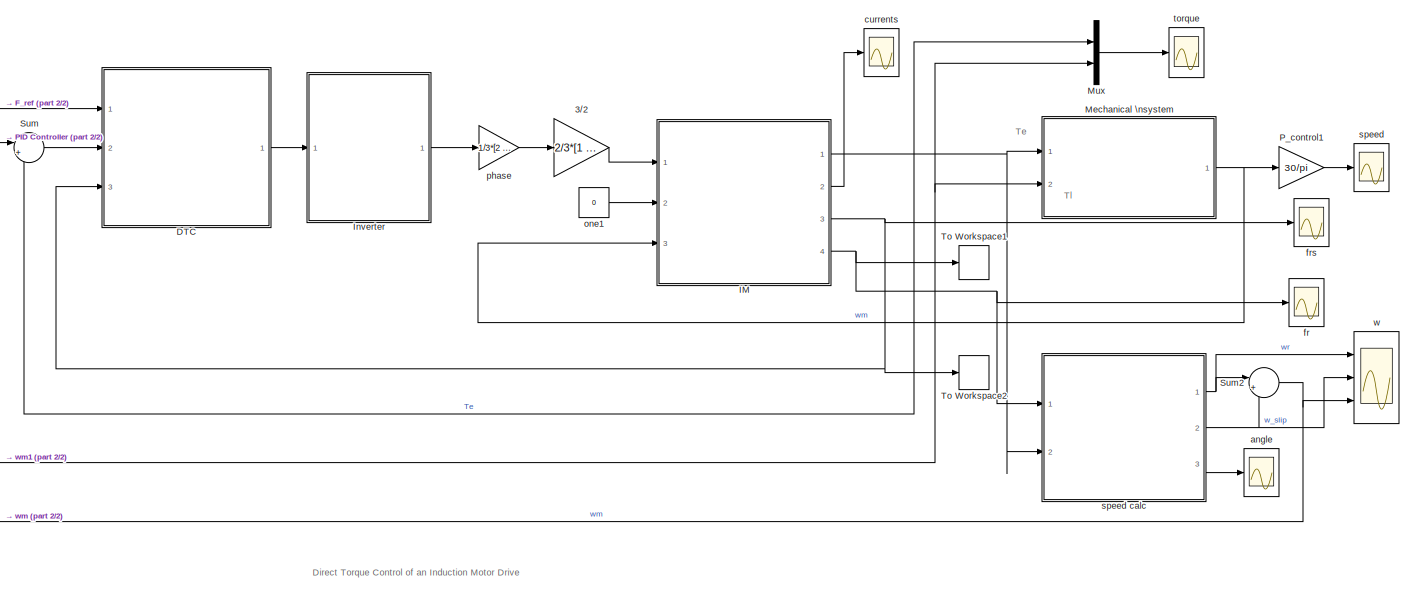
[diagram: root canvas - part 1/2, most of the canvas]
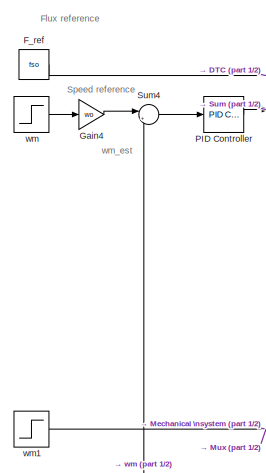
[diagram: root canvas - part 2/2, left side, full height]
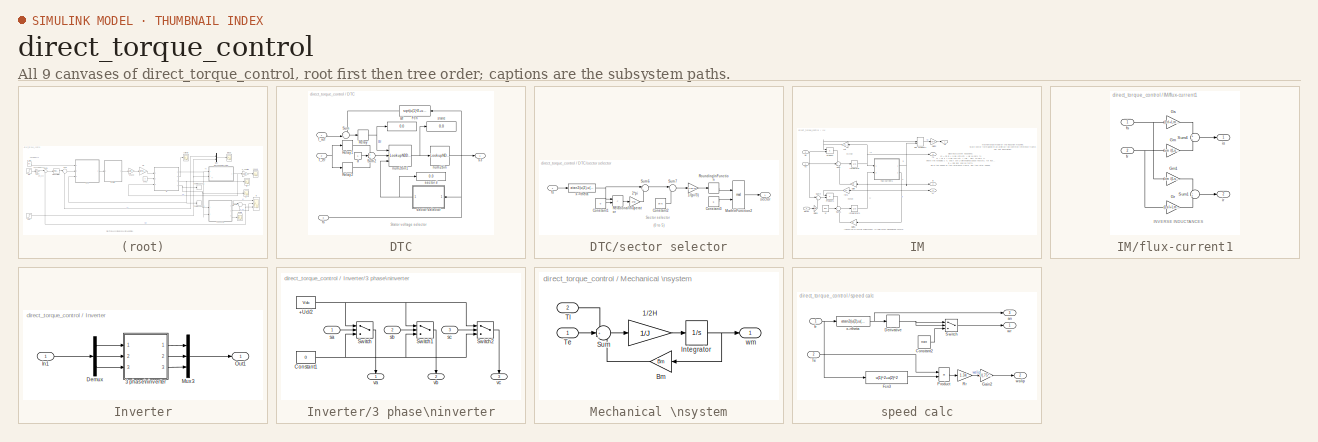
[diagram: thumbnail index - all 9 canvases of the model, root first then tree order]
MODEL direct_torque_control
KIND model
CONFIG InitFcn = clear;\nwarning off;\nwmo=0.0;       %initial speed\nfso=.996;        %initial stator flux\nVdc=700;\nwo=2*pi*50;\n\n%switching table for DTC\na(:,:,1) =[4 0 2;5 7 3];\na(:,:,2) =[5 7 6;1 0 2];\na(:,:,3) =[1 0 4;3 7 6];\na(:,:,4) =[3 7 5;2 0 4];\na(:,:,5) =[2 0 1;6 7 5];\na(:,:,6) =[6 7 3;4 0 1];\nclc;\n%
CONFIG StopFcn = close all;\nscrsz = get(0,'ScreenSize');\n\nfigure('Name',' Results','OuterPosition',[1 100 scrsz(3)*0.75 scrsz(4)*0.75]);\n\nsubplot(1,2,1);\nplot(fs(:,1),fs(:,2),'-r',fr(:,1),fr(:,2),'-b');\naxis equal;\ngrid on;\ntitle('Flux Spave Vector Trajectory');\ntext(.8,-.85,'rotor flux','color','b');\ntext(-1,-.85,'stator flux','color','r');\n%figure(2);\nsubplot(1,2,2);\nplot(an(:,1),unwrap(an(:,2)),'r...<+266ch>
BLOCK [Gain] 3//2
  Gain = 2/3*[1 -0.5 -0.5;0 sqrt(3)/2 -sqrt(3)/2]
  Multiplication = Matrix(K*u)
  SID = 13
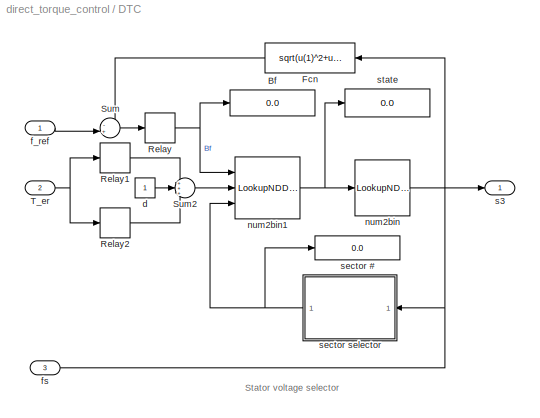
BLOCK [SubSystem] DTC
  FunctionWithSeparateData = off
  MaskHideContents = off
  MinAlgLoopOccurrences = off
  Opaque = off
  Ports = [3, 1]
  PropExecContextOutsideSubsystem = off
  RTWSystemCode = Auto
  RequestExecContextInheritance = off
  SID = 14
BLOCK [Display] DTC/Bf
  Decimation = 1
  Lockdown = off
  Ports = [1]
  SID = 18
BLOCK [Fcn] DTC/Fcn
  Expr = sqrt(u(1)^2+u(2)^2)
  SID = 19
BLOCK [Relay] DTC/Relay
  OffSwitchValue = -.02
  OnSwitchValue = .02
  SID = 20
BLOCK [Relay] DTC/Relay1
  OffSwitchValue = 0
  OnSwitchValue = .2
  SID = 21
  ZeroCross = off
BLOCK [Relay] DTC/Relay2
  OffOutputValue = -1
  OffSwitchValue = -.2
  OnOutputValue = 0
  OnSwitchValue = 0
  SID = 22
  ZeroCross = off
BLOCK [Sum] DTC/Sum
  IconShape = round
  Inputs = -+|
  Ports = [2, 1]
  SID = 23
BLOCK [Sum] DTC/Sum2
  IconShape = round
  Inputs = +++
  Ports = [3, 1]
  SID = 24
BLOCK [Inport] DTC/T_er
  IconDisplay = Port number
  Port = 2
  SID = 16
BLOCK [Constant] DTC/d
  SID = 25
BLOCK [Inport] DTC/f_ref
  IconDisplay = Port number
  SID = 15
BLOCK [Inport] DTC/fs
  IconDisplay = Port number
  Port = 3
  SID = 17
BLOCK [LookupNDDirect] DTC/num2bin
  DiagnosticForOutOfRangeInput = Error
  InputsSelectThisObjectFromTable = Column
  Ports = [1, 1]
  SID = 26
  Table = [0 0 0;1 0 0;0 1 0;1 1 0;0 0 1;1 0 1;0 1 1;1 1 1]'
BLOCK [LookupNDDirect] DTC/num2bin1
  DiagnosticForOutOfRangeInput = Error
  NumberOfTableDimensions = 3
  Ports = [3, 1]
  SID = 27
  Table = a
BLOCK [Outport] DTC/s3
  IconDisplay = Port number
  SID = 44
BLOCK [Display] DTC/sector #
  Decimation = 1
  Lockdown = off
  Ports = [1]
  SID = 28
BLOCK [SubSystem] DTC/sector selector
  FunctionWithSeparateData = off
  MaskHideContents = off
  MinAlgLoopOccurrences = off
  Opaque = off
  Ports = [1, 1]
  PropExecContextOutsideSubsystem = off
  RTWSystemCode = Auto
  RequestExecContextInheritance = off
  SID = 29
BLOCK [Gain] DTC/sector selector/1//(pi//3)
  Gain = 1/(pi/3)
  SID = 31
BLOCK [Gain] DTC/sector selector/2*pi
  Gain = 2*pi
  SID = 32
BLOCK [Constant] DTC/sector selector/Constant1
  SID = 33
  Value = 0
BLOCK [Constant] DTC/sector selector/Constant2
  SID = 34
  Value = pi/6
BLOCK [Constant] DTC/sector selector/Constant3
  SID = 35
  Value = 6
BLOCK [Math] DTC/sector selector/Math\nFunction2
  Operator = mod
  Ports = [2, 1]
  SID = 36
BLOCK [RelationalOperator] DTC/sector selector/Relational\nOperator
  Operator = <
  Ports = [2, 1]
  SID = 37
BLOCK [Rounding] DTC/sector selector/Rounding\nFunction
  SID = 38
BLOCK [Sum] DTC/sector selector/Sum6
  IconShape = round
  Inputs = |++
  Ports = [2, 1]
  SID = 39
BLOCK [Sum] DTC/sector selector/Sum7
  IconShape = round
  Inputs = |++
  Ports = [2, 1]
  SID = 40
BLOCK [Inport] DTC/sector selector/fs
  IconDisplay = Port number
  SID = 30
BLOCK [Outport] DTC/sector selector/sector
  IconDisplay = Port number
  SID = 42
BLOCK [Fcn] DTC/sector selector/x->theta
  Expr = atan2(u(2),u(1))
  SID = 41
BLOCK [Display] DTC/state
  Decimation = 1
  Lockdown = off
  Ports = [1]
  SID = 43
BLOCK [Constant] F_ref
  SID = 46
  Value = fso
BLOCK [Gain] Gain4
  Gain = wo
  SID = 47
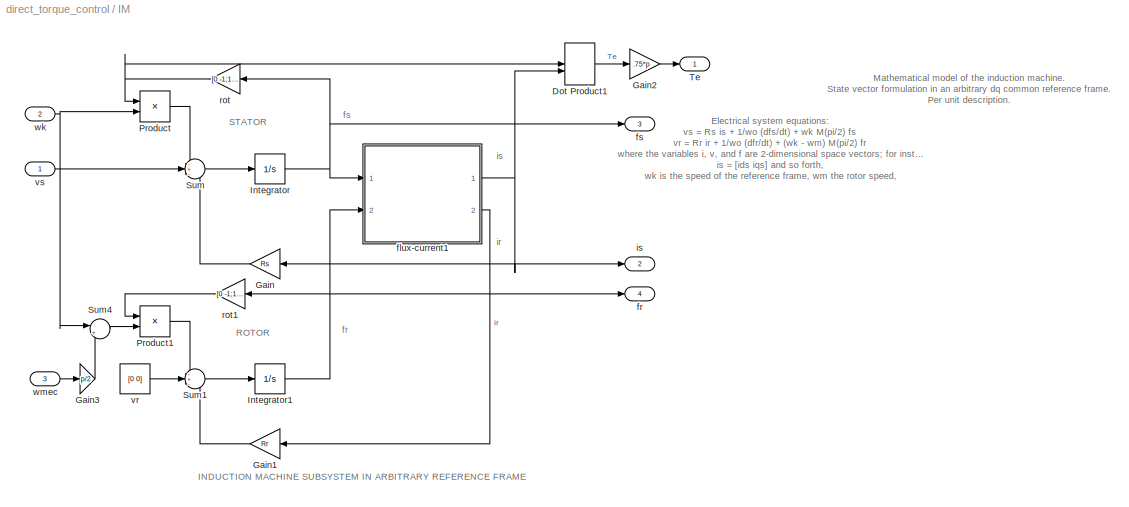
BLOCK [SubSystem] IM
  FunctionWithSeparateData = off
  MaskHideContents = off
  MinAlgLoopOccurrences = off
  Opaque = off
  Ports = [3, 4]
  PropExecContextOutsideSubsystem = off
  RTWSystemCode = Auto
  RequestExecContextInheritance = off
  SID = 48
BLOCK [DotProduct] IM/Dot Product1
  OutDataTypeStr = Inherit: Inherit via internal rule
  SID = 53
BLOCK [Gain] IM/Gain
  Gain = Rs
  SID = 54
BLOCK [Gain] IM/Gain1
  Gain = Rr
  SID = 55
BLOCK [Gain] IM/Gain2
  Gain = .75*p
  SID = 56
BLOCK [Gain] IM/Gain3
  Gain = p/2
  SID = 57
BLOCK [Integrator] IM/Integrator
  InitialCondition = [fso 0]
  Ports = [1, 1]
  SID = 58
BLOCK [Integrator] IM/Integrator1
  InitialCondition = [fso 0]
  Ports = [1, 1]
  SID = 59
BLOCK [Product] IM/Product
  Ports = [2, 1]
  RndMeth = Floor
  SID = 60
BLOCK [Product] IM/Product1
  Ports = [2, 1]
  RndMeth = Floor
  SID = 61
BLOCK [Sum] IM/Sum
  IconShape = round
  Inputs = -+-
  Ports = [3, 1]
  SID = 62
BLOCK [Sum] IM/Sum1
  IconShape = round
  Inputs = -+-
  Ports = [3, 1]
  SID = 63
BLOCK [Sum] IM/Sum4
  IconShape = round
  Inputs = |+-
  Ports = [2, 1]
  SID = 64
BLOCK [Outport] IM/Te
  IconDisplay = Port number
  SID = 80
BLOCK [SubSystem] IM/flux-current1
  FunctionWithSeparateData = off
  MaskHideContents = off
  MinAlgLoopOccurrences = off
  Opaque = off
  Ports = [2, 2]
  PropExecContextOutsideSubsystem = off
  RTWSystemCode = Auto
  RequestExecContextInheritance = off
  SID = 65
BLOCK [Gain] IM/flux-current1/Gm
  Gain = Lm /(Lsl*Lrl+Lsl*Lm+Lrl*Lm)
  SID = 68
BLOCK [Gain] IM/flux-current1/Gm1
  Gain = Lm /(Lsl*Lrl+Lsl*Lm+Lrl*Lm)
  SID = 69
BLOCK [Gain] IM/flux-current1/Gr
  Gain = (Lsl+Lm )/(Lsl*Lrl+Lsl*Lm+Lrl*Lm)
  SID = 70
BLOCK [Gain] IM/flux-current1/Gs
  Gain = (Lrl+Lm) /(Lsl*Lrl+Lsl*Lm+Lrl*Lm)
  SID = 71
BLOCK [Sum] IM/flux-current1/Sum1
  IconShape = round
  Inputs = -+
  Ports = [2, 1]
  SID = 72
BLOCK [Sum] IM/flux-current1/Sum4
  IconShape = round
  Inputs = +-
  Ports = [2, 1]
  SID = 73
BLOCK [Inport] IM/flux-current1/fr
  IconDisplay = Port number
  Port = 2
  SID = 67
BLOCK [Inport] IM/flux-current1/fs
  IconDisplay = Port number
  SID = 66
BLOCK [Outport] IM/flux-current1/ir
  IconDisplay = Port number
  Port = 2
  SID = 75
BLOCK [Outport] IM/flux-current1/is
  IconDisplay = Port number
  SID = 74
BLOCK [Outport] IM/fr
  IconDisplay = Port number
  Port = 4
  SID = 83
BLOCK [Outport] IM/fs
  IconDisplay = Port number
  Port = 3
  SID = 82
BLOCK [Outport] IM/is
  IconDisplay = Port number
  Port = 2
  SID = 81
BLOCK [Gain] IM/rot
  Gain = [0 -1;1 0]
  Multiplication = Matrix(K*u)
  SID = 77
BLOCK [Gain] IM/rot1
  Gain = [0 -1;1 0]
  Multiplication = Matrix(K*u)
  SID = 78
BLOCK [Constant] IM/vr
  SID = 79
  Value = [0 0]
BLOCK [Inport] IM/vs
  IconDisplay = Port number
  SID = 49
BLOCK [Inport] IM/wk
  IconDisplay = Port number
  Port = 2
  SID = 50
BLOCK [Inport] IM/wmec
  IconDisplay = Port number
  Port = 3
  SID = 51
BLOCK [SubSystem] Inverter
  FunctionWithSeparateData = off
  MaskHideContents = off
  MinAlgLoopOccurrences = off
  Opaque = off
  Ports = [1, 1]
  PropExecContextOutsideSubsystem = off
  RTWSystemCode = Auto
  RequestExecContextInheritance = off
  SID = 161
BLOCK [SubSystem] Inverter/3 phase\ninverter
  FunctionWithSeparateData = off
  MaskHideContents = off
  MinAlgLoopOccurrences = off
  Opaque = off
  Ports = [3, 3]
  PropExecContextOutsideSubsystem = off
  RTWSystemCode = Auto
  RequestExecContextInheritance = off
  SID = 1
BLOCK [Constant] Inverter/3 phase\ninverter/+Ud//2
  SID = 5
  Value = Vdc
BLOCK [Constant] Inverter/3 phase\ninverter/Constant1
  SID = 6
  Value = 0
BLOCK [Switch] Inverter/3 phase\ninverter/Switch
  SID = 7
  Threshold = 0.5
BLOCK [Switch] Inverter/3 phase\ninverter/Switch1
  SID = 8
  Threshold = 0.5
BLOCK [Switch] Inverter/3 phase\ninverter/Switch2
  SID = 9
  Threshold = 0.5
BLOCK [Inport] Inverter/3 phase\ninverter/sa
  IconDisplay = Port number
  SID = 2
BLOCK [Inport] Inverter/3 phase\ninverter/sb
  IconDisplay = Port number
  Port = 2
  SID = 3
BLOCK [Inport] Inverter/3 phase\ninverter/sc
  IconDisplay = Port number
  Port = 3
  SID = 4
BLOCK [Outport] Inverter/3 phase\ninverter/va
  IconDisplay = Port number
  InitialOutput = 0
  SID = 10
BLOCK [Outport] Inverter/3 phase\ninverter/vb
  IconDisplay = Port number
  InitialOutput = 0
  Port = 2
  SID = 11
BLOCK [Outport] Inverter/3 phase\ninverter/vc
  IconDisplay = Port number
  InitialOutput = 0
  Port = 3
  SID = 12
BLOCK [Demux] Inverter/Demux
  Outputs = 3
  Ports = [1, 3]
  SID = 45
BLOCK [Inport] Inverter/In1
  IconDisplay = Port number
  SID = 162
BLOCK [Mux] Inverter/Mux3
  DisplayOption = bar
  Inputs = 3
  Ports = [3, 1]
  SID = 93
BLOCK [Outport] Inverter/Out1
  IconDisplay = Port number
  SID = 163
BLOCK [SubSystem] Mechanical \nsystem
  FunctionWithSeparateData = off
  MaskHideContents = off
  MinAlgLoopOccurrences = off
  Opaque = off
  Ports = [2, 1]
  PropExecContextOutsideSubsystem = off
  RTWSystemCode = Auto
  RequestExecContextInheritance = off
  SID = 84
BLOCK [Gain] Mechanical \nsystem/1//2H
  Gain = 1/J
  SID = 87
BLOCK [Gain] Mechanical \nsystem/Bm
  Gain = Bm
  SID = 88
BLOCK [Integrator] Mechanical \nsystem/Integrator
  InitialCondition = wmo
  Ports = [1, 1]
  SID = 89
BLOCK [Sum] Mechanical \nsystem/Sum
  IconShape = round
  Inputs = -+-
  Ports = [3, 1]
  SID = 90
BLOCK [Inport] Mechanical \nsystem/Te
  IconDisplay = Port number
  SID = 85
BLOCK [Inport] Mechanical \nsystem/Tl
  IconDisplay = Port number
  Port = 2
  SID = 86
BLOCK [Outport] Mechanical \nsystem/wm
  IconDisplay = Port number
  SID = 91
BLOCK [Mux] Mux
  DisplayOption = bar
  Inputs = 2
  Ports = [2, 1]
  SID = 92
BLOCK [Reference] PID Controller  REF=simulink/Continuous/PID Controller
  AntiWindupMode = none
  Controller = P
  D = 0
  DOutDataTypeStr = Inherit: Inherit via internal rule
  DOutMax = []
  DOutMin = []
  DParamDataTypeStr = Inherit: Inherit via internal rule
  DParamMax = []
  DParamMin = []
  ExternalReset = none
  FilterContinuousStateAttributes = ''
  FilterMethod = Forward Euler
  FilterOutDataTypeStr = Inherit: Inherit via internal rule
  FilterOutMax = []
  FilterOutMin = []
  FilterRTWStateStorageClass = Auto
  FilterStateMustResolveToSignalObject = off
  Form = Parallel
  I = 1
  IOutDataTypeStr = Inherit: Inherit via internal rule
  IOutMax = []
  IOutMin = []
  IParamDataTypeStr = Inherit: Inherit via internal rule
  IParamMax = []
  IParamMin = []
  IgnoreLimit = off
  InitialConditionForFilter = 0
  InitialConditionForIntegrator = 0
  InitialConditionSource = internal
  IntegratorContinuousStateAttributes = ''
  IntegratorMethod = Forward Euler
  IntegratorOutDataTypeStr = Inherit: Inherit via internal rule
  IntegratorOutMax = []
  IntegratorOutMin = []
  IntegratorRTWStateStorageClass = Auto
  IntegratorStateMustResolveToSignalObject = off
  Kb = 1
  KbOutDataTypeStr = Inherit: Inherit via internal rule
  KbOutMax = []
  KbOutMin = []
  KbParamDataTypeStr = Inherit: Inherit via internal rule
  KbParamMax = []
  KbParamMin = []
  Kt = 1
  KtOutDataTypeStr = Inherit: Inherit via internal rule
  KtOutMax = []
  KtOutMin = []
  KtParamDataTypeStr = Inherit: Inherit via internal rule
  KtParamMax = []
  KtParamMin = []
  LimitOutput = on
  LinearizeAsGain = on
  LockScale = off
  LowerSaturationLimit = -30
  N = 100
  NOutDataTypeStr = Inherit: Inherit via internal rule
  NOutMax = []
  NOutMin = []
  NParamDataTypeStr = Inherit: Inherit via internal rule
  NParamMax = []
  NParamMin = []
  P = 4
  POutDataTypeStr = Inherit: Inherit via internal rule
  POutMax = []
  POutMin = []
  PParamDataTypeStr = Inherit: Inherit via internal rule
  PParamMax = []
  PParamMin = []
  Ports = [1, 1]
  RndMeth = Floor
  SID = 160
  SampleTime = 1
  SaturateOnIntegerOverflow = off
  SaturationOutDataTypeStr = Inherit: Same as input
  SaturationOutMax = []
  SaturationOutMin = []
  SourceBlock = simulink/Continuous/PID Controller
  SourceType = PID 1dof
  SumAccumDataTypeStr = Inherit: Inherit via internal rule
  SumDAccumDataTypeStr = Inherit: Inherit via internal rule
  SumDOutDataTypeStr = Inherit: Inherit via internal rule
  SumDOutMax = []
  SumDOutMin = []
  SumI1AccumDataTypeStr = Inherit: Inherit via internal rule
  SumI1OutDataTypeStr = Inherit: Inherit via internal rule
  SumI1OutMax = []
  SumI1OutMin = []
  SumI2AccumDataTypeStr = Inherit: Inherit via internal rule
  SumI2OutDataTypeStr = Inherit: Inherit via internal rule
  SumI2OutMax = []
  SumI2OutMin = []
  SumI3AccumDataTypeStr = Inherit: Inherit via internal rule
  SumI3OutDataTypeStr = Inherit: Inherit via internal rule
  SumI3OutMax = []
  SumI3OutMin = []
  SumOutDataTypeStr = Inherit: Inherit via internal rule
  SumOutMax = []
  SumOutMin = []
  TimeDomain = Continuous-time
  TrackingMode = off
  UpperSaturationLimit = 30
  ZeroCross = on
BLOCK [Gain] P_control1
  Gain = 30/pi
  SID = 95
BLOCK [Sum] Sum
  IconShape = round
  InputSameDT = off
  Inputs = |+-
  OutDataTypeStr = Inherit: Inherit via internal rule
  Ports = [2, 1]
  SID = 97
BLOCK [Sum] Sum2
  IconShape = round
  InputSameDT = off
  Inputs = |+-
  OutDataTypeStr = Inherit: Inherit via internal rule
  Ports = [2, 1]
  SID = 98
BLOCK [Sum] Sum4
  IconShape = round
  Inputs = |+-
  Ports = [2, 1]
  SID = 99
BLOCK [ToWorkspace] To Workspace1
  Decimation = 2
  MaxDataPoints = inf
  Ports = [1]
  SID = 100
  SampleTime = -1
  VariableName = fr
BLOCK [ToWorkspace] To Workspace2
  Decimation = 2
  MaxDataPoints = inf
  Ports = [1]
  SID = 101
  SampleTime = -1
  VariableName = fs
BLOCK [Scope] angle
  Decimation = 20
  Floating = off
  LimitDataPoints = off
  MaxDataPoints = 20000
  NumInputPorts = 1
  Ports = [1]
  SID = 102
  SampleTime = 0
  SaveName = an
  SaveToWorkspace = on
  ShowLegends = off
  TimeRange = 0.4
  YMax = 3.5
  YMin = -3.5
BLOCK [Scope] currents
  DataFormat = StructureWithTime
  Decimation = 20
  Floating = off
  LimitDataPoints = off
  MaxDataPoints = 20000
  NumInputPorts = 1
  Ports = [1]
  SID = 103
  SampleTime = 0
  ShowLegends = off
  TimeRange = 0.4
  YMax = 3.5
  YMin = -3.5
  ZoomMode = xonly
BLOCK [Scope] fr
  DataFormat = StructureWithTime
  Decimation = 20
  Floating = off
  LimitDataPoints = off
  MaxDataPoints = 20000
  NumInputPorts = 1
  Ports = [1]
  SID = 104
  SampleTime = 0
  SaveName = ScopeData1
  ShowLegends = off
  TimeRange = 1
  YMax = 1.5
  YMin = -1.5
  ZoomMode = xonly
BLOCK [Scope] frs
  DataFormat = StructureWithTime
  Decimation = 20
  Floating = off
  LimitDataPoints = off
  MaxDataPoints = 20000
  NumInputPorts = 1
  Ports = [1]
  SID = 105
  SampleTime = 0
  SaveName = ScopeData4
  ShowLegends = off
  TimeRange = 2
  YMax = 1.1
  YMin = -1.1
  ZoomMode = xonly
BLOCK [Constant] one1
  SID = 108
  Value = 0
BLOCK [Gain] phase
  Gain = 1/3*[2 -1 -1;-1 2 -1;-1 -1 2]
  Multiplication = Matrix(K*u)
  SID = 109
BLOCK [Scope] speed
  DataFormat = StructureWithTime
  Decimation = 20
  Floating = off
  LimitDataPoints = off
  MaxDataPoints = 20000
  NumInputPorts = 1
  Ports = [1]
  SID = 112
  SampleTime = 0
  SaveName = ScopeData2
  ShowLegends = off
  TimeRange = 0.4
  YMax = 1500
  YMin = 0
BLOCK [SubSystem] speed calc
  FunctionWithSeparateData = off
  MaskHideContents = off
  MinAlgLoopOccurrences = off
  Opaque = off
  Ports = [2, 3]
  PropExecContextOutsideSubsystem = off
  RTWSystemCode = Auto
  RequestExecContextInheritance = off
  SID = 113
BLOCK [Constant] speed calc/Constant2
  SID = 116
  Value = nan
BLOCK [Derivative] speed calc/Derivative
  SID = 117
BLOCK [Fcn] speed calc/Fcn3
  Expr = u(1)^2+u(2)^2
  SID = 118
BLOCK [Gain] speed calc/Gain2
  Gain = 1/(.75*4)
  SID = 119
BLOCK [Product] speed calc/Product
  Inputs = */
  Ports = [2, 1]
  RndMeth = Floor
  SID = 120
BLOCK [Gain] speed calc/Rr
  Gain = 1.34
  SID = 121
BLOCK [Switch] speed calc/Switch
  InputSameDT = off
  SID = 122
  ZeroCross = off
BLOCK [Inport] speed calc/Te
  IconDisplay = Port number
  Port = 2
  SID = 115
BLOCK [Outport] speed calc/an
  IconDisplay = Port number
  Port = 3
  SID = 126
BLOCK [Inport] speed calc/fr
  IconDisplay = Port number
  SID = 114
BLOCK [Outport] speed calc/wr
  IconDisplay = Port number
  SID = 124
BLOCK [Outport] speed calc/wslip
  IconDisplay = Port number
  Port = 2
  SID = 125
BLOCK [Fcn] speed calc/x->theta
  Expr = atan2(u(2),u(1))
  SID = 123
BLOCK [Scope] torque
  DataFormat = StructureWithTime
  Decimation = 20
  Floating = off
  LimitDataPoints = off
  MaxDataPoints = 20000
  NumInputPorts = 1
  Ports = [1]
  SID = 127
  SampleTime = 0
  SaveName = ScopeData3
  ShowLegends = off
  TimeRange = 0.4
  YMax = 32.5
  YMin = -2.5
  ZoomMode = xonly
BLOCK [Scope] w
  DataFormat = StructureWithTime
  Floating = off
  LimitDataPoints = off
  NumInputPorts = 3
  Ports = [3]
  SID = 128
  SampleTime = 0
  SaveName = ScopeData6
  ShowLegends = off
  TimeRange = 0.4
  YMax = 350~20~350
  YMin = 0~-2.5~-50
BLOCK [Step] wm
  After = .8
  Before = wmo
  SID = 129
  SampleTime = 0
  Time = .05
BLOCK [Step] wm1
  After = 12
  SID = 130
  SampleTime = 0
  Time = .3
ANNOTATION (root): Direct Torque Control of an Induction Motor Drive
ANNOTATION (root): Flux reference
ANNOTATION (root): Speed reference
ANNOTATION (root): Te
ANNOTATION (root): Tl
ANNOTATION (root): wm_est
ANNOTATION DTC: Stator voltage selector
ANNOTATION DTC/sector selector: (0 to 5)
ANNOTATION DTC/sector selector: Sector selector
ANNOTATION IM: Electrical system equations: \n vs = Rs is + 1/wo (dfs/dt) + wk M(pi/2) fs \n vr = Rr ir + 1/wo (dfr/dt) + (wk - wm) M(pi/2) fr\n where the variables i, v, and f are 2-dimensional space vectors; for instance\n is = [ids iqs] and so forth,\n wk is the speed of the reference frame, wm the rotor speed,\n and M(pi/2)represents a 90o space rotator namely M(pi/2) = [0 -1;1 0]\n\n The flux linkage curren...<+430ch>
ANNOTATION IM: INDUCTION MACHINE SUBSYSTEM IN ARBITRARY REFERENCE FRAME
ANNOTATION IM: Mathematical model of the induction machine. \nState vector formulation in an arbitrary dq common reference frame.\nPer unit description.
ANNOTATION IM: ROTOR
ANNOTATION IM: STATOR
ANNOTATION IM: fr
ANNOTATION IM: fs
ANNOTATION IM: ir
ANNOTATION IM: is
ANNOTATION IM/flux-current1: INVERSE INDUCTANCES
LINE 3//2:1 -> IM:1
LINE DTC/Fcn:1 -> DTC/Sum:1
LINE DTC/Relay1:1 -> DTC/Sum2:1
LINE DTC/Relay2:1 -> DTC/Sum2:3
NET DTC/Relay:1 -> DTC/Bf:1, DTC/num2bin1:1
LINE DTC/Sum2:1 -> DTC/num2bin1:2
LINE DTC/Sum:1 -> DTC/Relay:1
NET DTC/T_er:1 -> DTC/Relay1:1, DTC/Relay2:1
LINE DTC/d:1 -> DTC/Sum2:2
LINE DTC/f_ref:1 -> DTC/Sum:2
NET DTC/fs:1 -> DTC/Fcn:1, DTC/sector selector:1
NET DTC/num2bin1:1 -> DTC/num2bin:1, DTC/state:1
LINE DTC/num2bin:1 -> DTC/s3:1
LINE DTC/sector selector/1//(pi//3):1 -> DTC/sector selector/Rounding\nFunction:1
LINE DTC/sector selector/2*pi:1 -> DTC/sector selector/Sum6:2
LINE DTC/sector selector/Constant1:1 -> DTC/sector selector/Relational\nOperator:2
LINE DTC/sector selector/Constant2:1 -> DTC/sector selector/Sum7:2
LINE DTC/sector selector/Constant3:1 -> DTC/sector selector/Math\nFunction2:2
LINE DTC/sector selector/Math\nFunction2:1 -> DTC/sector selector/sector:1
LINE DTC/sector selector/Relational\nOperator:1 -> DTC/sector selector/2*pi:1
LINE DTC/sector selector/Rounding\nFunction:1 -> DTC/sector selector/Math\nFunction2:1
LINE DTC/sector selector/Sum6:1 -> DTC/sector selector/Sum7:1
LINE DTC/sector selector/Sum7:1 -> DTC/sector selector/1//(pi//3):1
LINE DTC/sector selector/fs:1 -> DTC/sector selector/x->theta:1
NET DTC/sector selector/x->theta:1 -> DTC/sector selector/Relational\nOperator:1, DTC/sector selector/Sum6:1
NET DTC/sector selector:1 -> DTC/num2bin1:3, DTC/sector #:1
LINE DTC:1 -> Inverter:1
LINE F_ref:1 -> DTC:1
LINE Gain4:1 -> Sum4:1
LINE IM/Dot Product1:1 -> IM/Gain2:1
LINE IM/Gain1:1 -> IM/Sum1:3
LINE IM/Gain2:1 -> IM/Te:1
LINE IM/Gain3:1 -> IM/Sum4:2
LINE IM/Gain:1 -> IM/Sum:3
NET IM/Integrator1:1 -> IM/flux-current1:2, IM/fr:1, IM/rot1:1
NET IM/Integrator:1 -> IM/flux-current1:1, IM/fs:1, IM/rot:1
LINE IM/Product1:1 -> IM/Sum1:1
LINE IM/Product:1 -> IM/Sum:1
LINE IM/Sum1:1 -> IM/Integrator1:1
LINE IM/Sum4:1 -> IM/Product1:2
LINE IM/Sum:1 -> IM/Integrator:1
LINE IM/flux-current1/Gm1:1 -> IM/flux-current1/Sum1:1
LINE IM/flux-current1/Gm:1 -> IM/flux-current1/Sum4:2
LINE IM/flux-current1/Gr:1 -> IM/flux-current1/Sum1:2
LINE IM/flux-current1/Gs:1 -> IM/flux-current1/Sum4:1
LINE IM/flux-current1/Sum1:1 -> IM/flux-current1/ir:1
LINE IM/flux-current1/Sum4:1 -> IM/flux-current1/is:1
NET IM/flux-current1/fr:1 -> IM/flux-current1/Gm:1, IM/flux-current1/Gr:1
NET IM/flux-current1/fs:1 -> IM/flux-current1/Gm1:1, IM/flux-current1/Gs:1
NET IM/flux-current1:1 -> IM/Dot Product1:2, IM/Gain:1, IM/is:1
LINE IM/flux-current1:2 -> IM/Gain1:1
LINE IM/rot1:1 -> IM/Product1:1
NET IM/rot:1 -> IM/Dot Product1:1, IM/Product:1
LINE IM/vr:1 -> IM/Sum1:2
LINE IM/vs:1 -> IM/Sum:2
NET IM/wk:1 -> IM/Product:2, IM/Sum4:1
LINE IM/wmec:1 -> IM/Gain3:1
NET IM:1 -> Mechanical \nsystem:1, Mux:1, Sum:2, speed calc:2
LINE IM:2 -> currents:1
NET IM:3 -> DTC:3, To Workspace2:1, frs:1
NET IM:4 -> To Workspace1:1, fr:1, speed calc:1
NET Inverter/3 phase\ninverter/+Ud//2:1 -> Inverter/3 phase\ninverter/Switch1:1, Inverter/3 phase\ninverter/Switch2:1, Inverter/3 phase\ninverter/Switch:1
NET Inverter/3 phase\ninverter/Constant1:1 -> Inverter/3 phase\ninverter/Switch1:3, Inverter/3 phase\ninverter/Switch2:3, Inverter/3 phase\ninverter/Switch:3
LINE Inverter/3 phase\ninverter/Switch1:1 -> Inverter/3 phase\ninverter/vb:1
LINE Inverter/3 phase\ninverter/Switch2:1 -> Inverter/3 phase\ninverter/vc:1
LINE Inverter/3 phase\ninverter/Switch:1 -> Inverter/3 phase\ninverter/va:1
LINE Inverter/3 phase\ninverter/sa:1 -> Inverter/3 phase\ninverter/Switch:2
LINE Inverter/3 phase\ninverter/sb:1 -> Inverter/3 phase\ninverter/Switch1:2
LINE Inverter/3 phase\ninverter/sc:1 -> Inverter/3 phase\ninverter/Switch2:2
LINE Inverter/3 phase\ninverter:1 -> Inverter/Mux3:1
LINE Inverter/3 phase\ninverter:2 -> Inverter/Mux3:2
LINE Inverter/3 phase\ninverter:3 -> Inverter/Mux3:3
LINE Inverter/Demux:1 -> Inverter/3 phase\ninverter:1
LINE Inverter/Demux:2 -> Inverter/3 phase\ninverter:2
LINE Inverter/Demux:3 -> Inverter/3 phase\ninverter:3
LINE Inverter/In1:1 -> Inverter/Demux:1
LINE Inverter/Mux3:1 -> Inverter/Out1:1
LINE Inverter:1 -> phase:1
LINE Mechanical \nsystem/1//2H:1 -> Mechanical \nsystem/Integrator:1
LINE Mechanical \nsystem/Bm:1 -> Mechanical \nsystem/Sum:3
NET Mechanical \nsystem/Integrator:1 -> Mechanical \nsystem/Bm:1, Mechanical \nsystem/wm:1
LINE Mechanical \nsystem/Sum:1 -> Mechanical \nsystem/1//2H:1
LINE Mechanical \nsystem/Te:1 -> Mechanical \nsystem/Sum:2
LINE Mechanical \nsystem/Tl:1 -> Mechanical \nsystem/Sum:1
NET Mechanical \nsystem:1 -> IM:3, P_control1:1
LINE Mux:1 -> torque:1
LINE PID Controller:1 -> Sum:1
LINE P_control1:1 -> speed:1
NET Sum2:1 -> Sum4:2, w:3
LINE Sum4:1 -> PID Controller:1
LINE Sum:1 -> DTC:2
LINE one1:1 -> IM:2
LINE phase:1 -> 3//2:1
LINE speed calc/Constant2:1 -> speed calc/Switch:3
NET speed calc/Derivative:1 -> speed calc/Switch:1, speed calc/Switch:2
LINE speed calc/Fcn3:1 -> speed calc/Product:2
LINE speed calc/Gain2:1 -> speed calc/wslip:1
LINE speed calc/Product:1 -> speed calc/Rr:1
LINE speed calc/Rr:1 -> speed calc/Gain2:1
LINE speed calc/Switch:1 -> speed calc/wr:1
LINE speed calc/Te:1 -> speed calc/Product:1
NET speed calc/fr:1 -> speed calc/Fcn3:1, speed calc/x->theta:1
NET speed calc/x->theta:1 -> speed calc/Derivative:1, speed calc/an:1
NET speed calc:1 -> Sum2:1, w:1
NET speed calc:2 -> Sum2:2, w:2
LINE speed calc:3 -> angle:1
NET wm1:1 -> Mechanical \nsystem:2, Mux:2
LINE wm:1 -> Gain4:1
note: NET lines group one-source signal fan-out (src -> all destinations, sorted); 1:1 wires keep LINE
